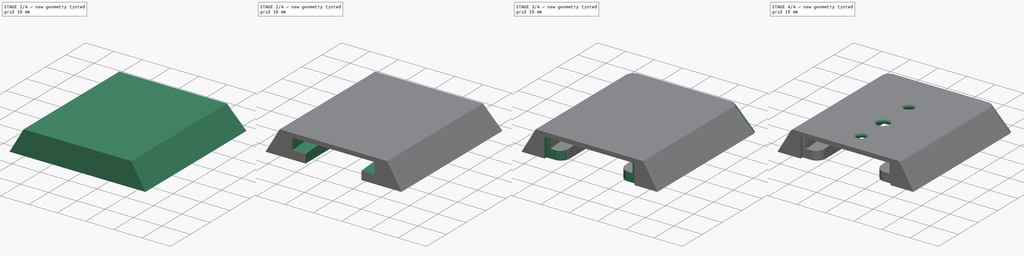
[diagram: build sequence overview — one tinted view per stage of 4, left to right]
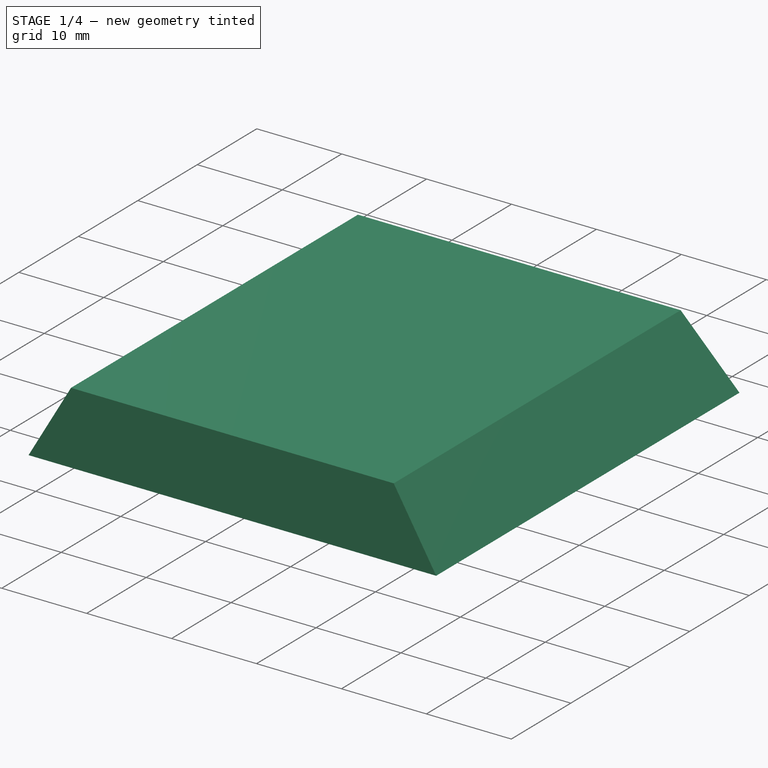
[diagram: stage 1 of 4 — iso view after this stage's code; geometry added in this stage tinted green]
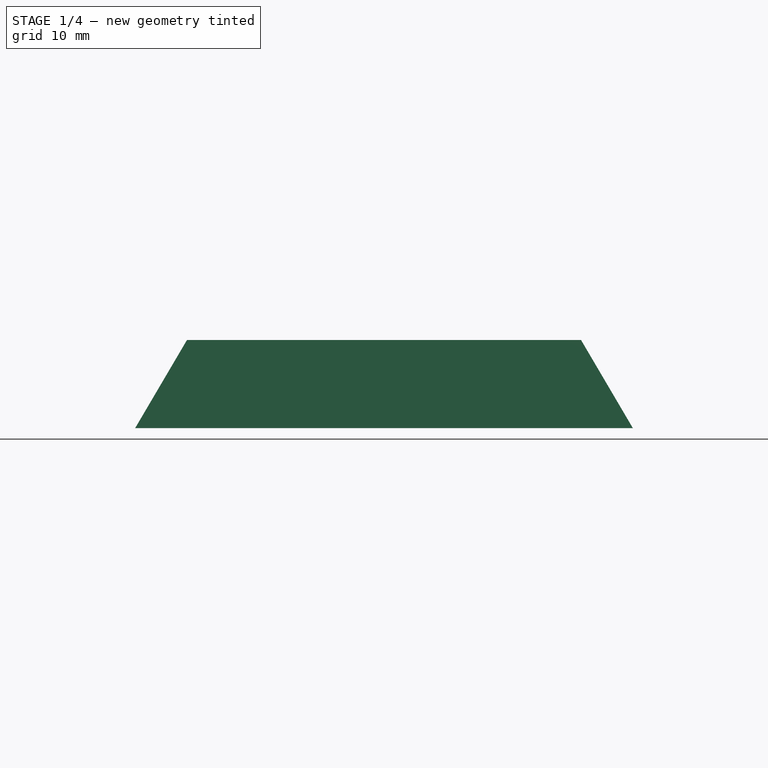
[diagram: stage 1 of 4 — front view after this stage's code; geometry added in this stage tinted green]
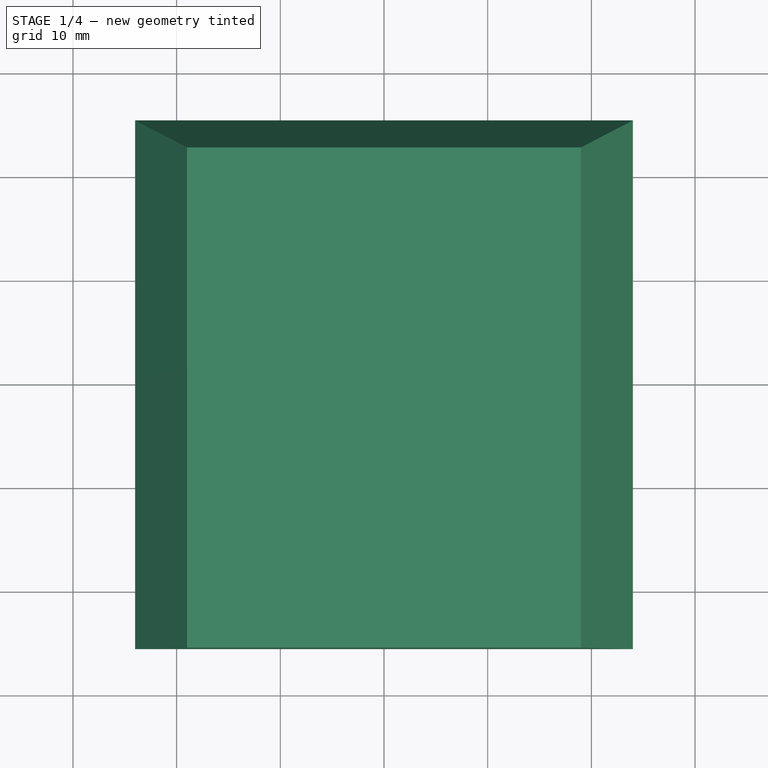
[diagram: stage 1 of 4 — top view after this stage's code; geometry added in this stage tinted green]
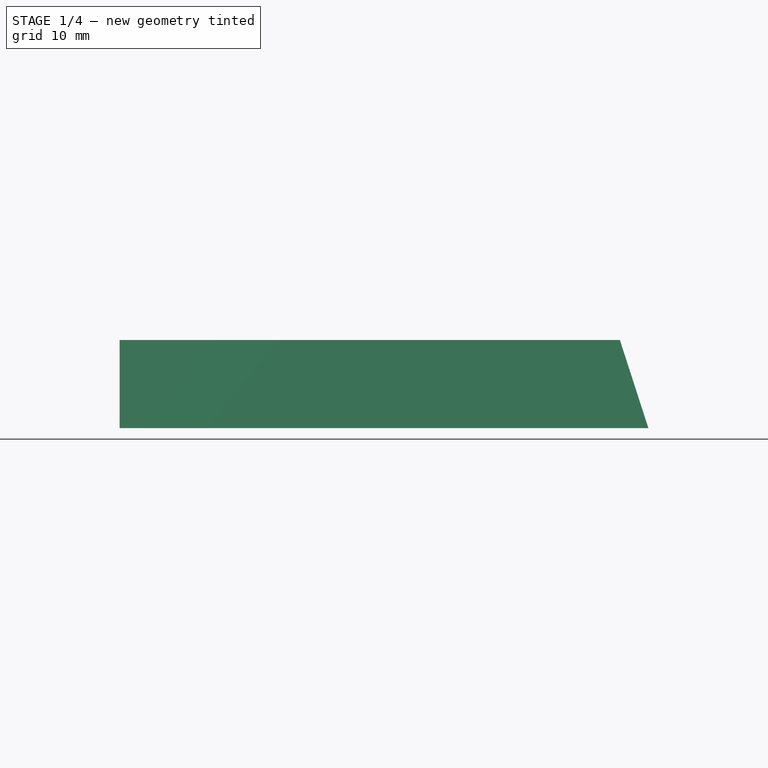
[diagram: stage 1 of 4 — right view after this stage's code; geometry added in this stage tinted green]
FCSTD DOCUMENT  (FreeCAD 0.19R24291 (Git))
Label: Hangerv2
License: All rights reserved
LicenseURL: http://en.wikipedia.org/wiki/All_rights_reserved
objects: Sketcher::SketchObject×8, PartDesign::Pocket×7, PartDesign::Fillet×2, PartDesign::Pad×1, PartDesign::Chamfer×1, PartDesign::Body×1
note: 31 computed .brp shape members not serialized (recipe doc carries the construction recipe); baked Part::Feature solids carry a one-line shape summary decoded from their .brp

FEATURE [Sketcher::SketchObject] Sketch
  FullyConstrained = false
  MapMode = 5
  Support = -> [XY_Plane]
  sketch-geometry (4):
    g0: LineSegment StartX=-24 StartY=25.5 StartZ=0 EndX=24 EndY=25.5 EndZ=0
    g1: LineSegment StartX=24 StartY=25.5 StartZ=0 EndX=24 EndY=-25.5 EndZ=0
    g2: LineSegment StartX=24 StartY=-25.5 StartZ=0 EndX=-24 EndY=-25.5 EndZ=0
    g3: LineSegment StartX=-24 StartY=-25.5 StartZ=0 EndX=-24 EndY=25.5 EndZ=0
  constraints (10):
    c: Coincident(g0,g1)
    c: Coincident(g1,g2)
    c: Coincident(g2,g3)
    c: Coincident(g3,g0)
    c: Horizontal(g2)
    c: Vertical(g1)
    c: DistanceX(g0,g0) = 48
    c: DistanceY(g1,g1) = 51
    c: Symmetric(g0,g0,g-2)
    c: Symmetric(g0,g2,g-1)
FEATURE [PartDesign::Pad] Pad
  Direction = (1,1,1)
  Length = 8.5
  Length2 = 100
  Profile = -> Sketch
  Type = 0
FEATURE [Sketcher::SketchObject] Sketch001
  ExternalGeometry = -> [Pad]
  FullyConstrained = true
  MapMode = 5
  Placement = pos=(0,-25.5,0) rot=(1,0,0;1.5708rad)
  Support = -> [Pad]
  sketch-geometry (6):
    g0: LineSegment StartX=-24 StartY=8.5 StartZ=0 EndX=-24 EndY=0 EndZ=0
    g1: LineSegment StartX=-24 StartY=8.5 StartZ=0 EndX=-19 EndY=8.5 EndZ=0
    g2: LineSegment StartX=-19 StartY=8.5 StartZ=0 EndX=-24 EndY=0 EndZ=0
    g3: LineSegment StartX=24 StartY=8.5 StartZ=0 EndX=24 EndY=0 EndZ=0
    g4: LineSegment StartX=24 StartY=8.5 StartZ=0 EndX=19 EndY=8.5 EndZ=0
    g5: LineSegment StartX=19 StartY=8.5 StartZ=0 EndX=24 EndY=0 EndZ=0
  constraints (14):
    c: Coincident(g0,g-3)
    c: Coincident(g0,g-3)
    c: Coincident(g1,g0)
    c: Horizontal(g1)
    c: Coincident(g2,g1)
    c: Coincident(g2,g0)
    c: DistanceX(g1,g1) = 5
    c: Coincident(g3,g-4)
    c: Coincident(g3,g-4)
    c: Coincident(g3,g4)
    c: Horizontal(g4)
    c: Coincident(g4,g5)
    c: Coincident(g5,g3)
    c: Equal(g5,g2)
FEATURE [Sketcher::SketchObject] Sketch002
  FullyConstrained = false
  MapMode = 5
  Placement = pos=(0,0,0) rot=(1,0,0;3.14159rad)
  sketch-geometry (4):
    g0: LineSegment StartX=-9.875 StartY=25.5 StartZ=0 EndX=9.875 EndY=25.5 EndZ=0
    g1: LineSegment StartX=9.875 StartY=25.5 StartZ=0 EndX=9.875 EndY=-14.5 EndZ=0
    g2: LineSegment StartX=9.875 StartY=-14.5 StartZ=0 EndX=-9.875 EndY=-14.5 EndZ=0
    g3: LineSegment StartX=-9.875 StartY=-14.5 StartZ=0 EndX=-9.875 EndY=25.5 EndZ=0
  constraints (10):
    c: Coincident(g0,g1)
    c: Coincident(g1,g2)
    c: Coincident(g2,g3)
    c: Coincident(g3,g0)
    c: Horizontal(g0)
    c: Vertical(g1)
    c: Vertical(g3)
    c: DistanceX(g2,g2) = 19.75
    c: Symmetric(g2,g1,g-2)
    c: DistanceY(g3,g3) = 40
FEATURE [Sketcher::SketchObject] Sketch005
  FullyConstrained = false
  MapMode = 5
  Placement = pos=(0,0,0) rot=(1,0,0;3.14159rad)
  sketch-geometry (4):
    g0: LineSegment StartX=-7 StartY=-23 StartZ=0 EndX=7 EndY=-23 EndZ=0
    g1: LineSegment StartX=7 StartY=-23 StartZ=0 EndX=7 EndY=-25.5 EndZ=0
    g2: LineSegment StartX=7 StartY=-25.5 StartZ=0 EndX=-7 EndY=-25.5 EndZ=0
    g3: LineSegment StartX=-7 StartY=-25.5 StartZ=0 EndX=-7 EndY=-23 EndZ=0
  constraints (10):
    c: Coincident(g0,g1)
    c: Coincident(g1,g2)
    c: Coincident(g2,g3)
    c: Coincident(g3,g0)
    c: Horizontal(g2)
    c: Vertical(g1)
    c: Vertical(g3)
    c: Symmetric(g0,g0,g-2)
    c: DistanceX(g0,g0) = 14
    c: DistanceY(g3,g3) = 2.5
FEATURE [Sketcher::SketchObject] Sketch006
  ExternalGeometry = -> [Pad]
  FullyConstrained = true
  MapMode = 5
  Placement = pos=(24,0,0) rot=(0.57735,0.57735,0.57735;2.0944rad)
  Support = -> [Pad]
  sketch-geometry (3):
    g0: LineSegment StartX=25.5 StartY=8.5 StartZ=0 EndX=25.5 EndY=0 EndZ=0
    g1: LineSegment StartX=25.5 StartY=8.5 StartZ=0 EndX=22.75 EndY=8.5 EndZ=0
    g2: LineSegment StartX=22.75 StartY=8.5 StartZ=0 EndX=25.5 EndY=0 EndZ=0
  constraints (7):
    c: Coincident(g0,g-4)
    c: Coincident(g0,g-3)
    c: Coincident(g1,g0)
    c: PointOnObject(g1,g-4)
    c: Coincident(g2,g1)
    c: Coincident(g2,g0)
    c: DistanceX(g1,g1) = 2.75
FEATURE [PartDesign::Pocket] Pocket
  BaseFeature = -> Pad
  Length = 5
  Length2 = 100
  Profile = -> Sketch006
  Type = 1
FEATURE [PartDesign::Pocket] Pocket001
  BaseFeature = -> Pocket
  Length = 5
  Length2 = 100
  Profile = -> Sketch001
  Type = 1
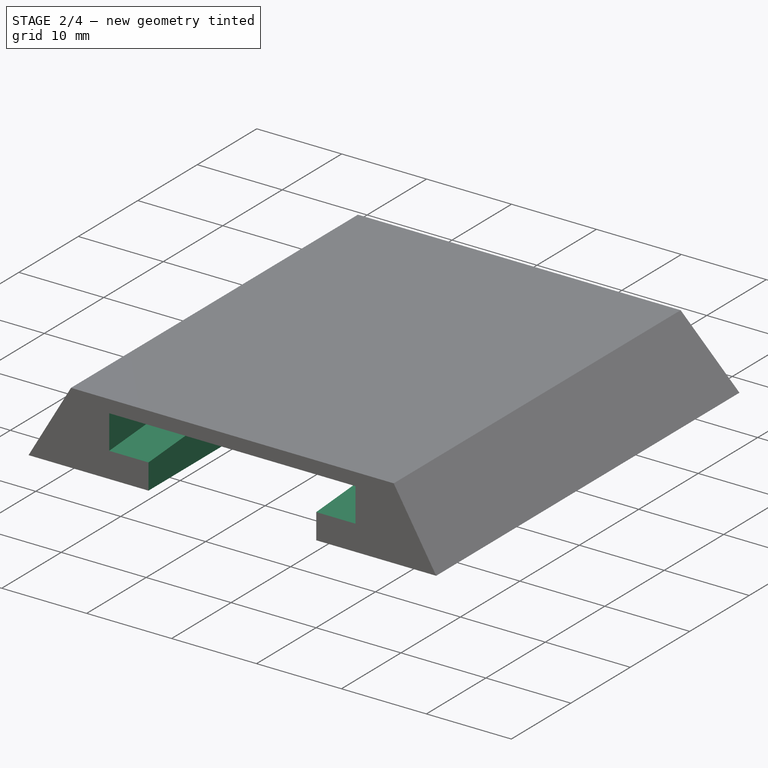
[diagram: stage 2 of 4 — iso view after this stage's code; geometry added in this stage tinted green]
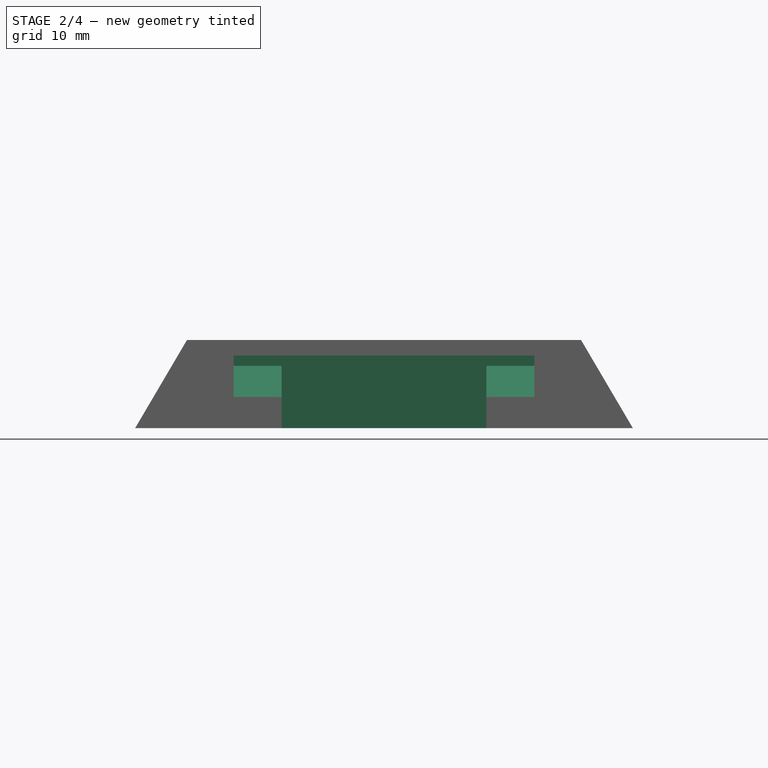
[diagram: stage 2 of 4 — front view after this stage's code; geometry added in this stage tinted green]
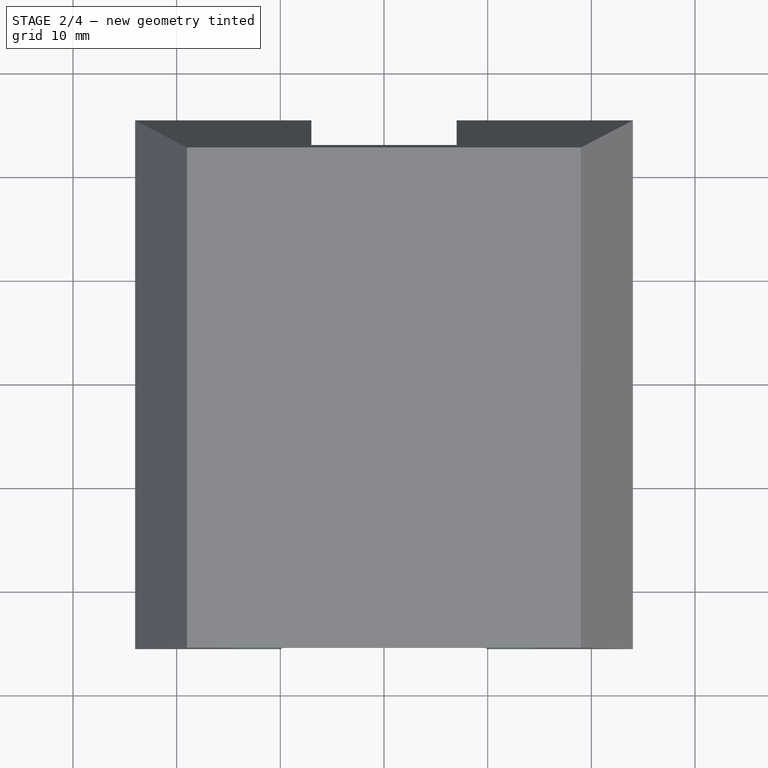
[diagram: stage 2 of 4 — top view after this stage's code; geometry added in this stage tinted green]
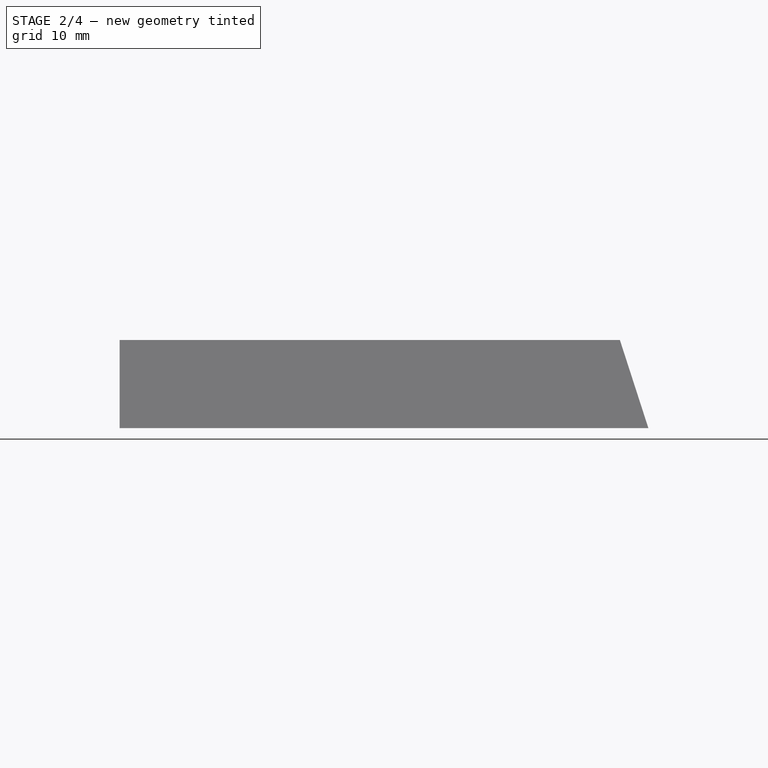
[diagram: stage 2 of 4 — right view after this stage's code; geometry added in this stage tinted green]
FEATURE [Sketcher::SketchObject] Sketch003
  ExternalGeometry = -> [Pocket001]
  FullyConstrained = true
  MapMode = 5
  Placement = pos=(0,0,0) rot=(0.57735,0.57735,0.57735;2.0944rad)
  Support = -> [YZ_Plane]
  sketch-geometry (4):
    g0: LineSegment StartX=-25.5 StartY=3 StartZ=0 EndX=-25.5 EndY=7 EndZ=0
    g1: LineSegment StartX=-25.5 StartY=7 StartZ=0 EndX=14.5 EndY=7 EndZ=0
    g2: LineSegment StartX=14.5 StartY=7 StartZ=0 EndX=14.5 EndY=6 EndZ=0
    g3: LineSegment StartX=14.5 StartY=6 StartZ=0 EndX=-25.5 EndY=3 EndZ=0
  constraints (12):
    c: Coincident(g1,g0)
    c: Coincident(g2,g1)
    c: Coincident(g3,g2)
    c: Coincident(g3,g0)
    c: Vertical(g2)
    c: DistanceY(g2,g2) = 1
    c: DistanceY(g-1,g0) = 3
    c: DistanceX(g0,g-1) = 25.5
    c: DistanceY(g0,g0) = 4
    c: DistanceX(g1,g1) = 40
    c: Vertical(g0)
    c: Horizontal(g1)
FEATURE [PartDesign::Pocket] Pocket002
  BaseFeature = -> Pocket001
  Length = 7
  Length2 = 100
  Profile = -> Sketch002
  Type = 0
FEATURE [PartDesign::Pocket] Pocket003
  BaseFeature = -> Pocket002
  Length = 29
  Length2 = 100
  Midplane = true
  Profile = -> Sketch003
  Type = 0
FEATURE [PartDesign::Pocket] Pocket005
  BaseFeature = -> Pocket003
  Length = 5
  Length2 = 100
  Profile = -> Sketch005
  Type = 1
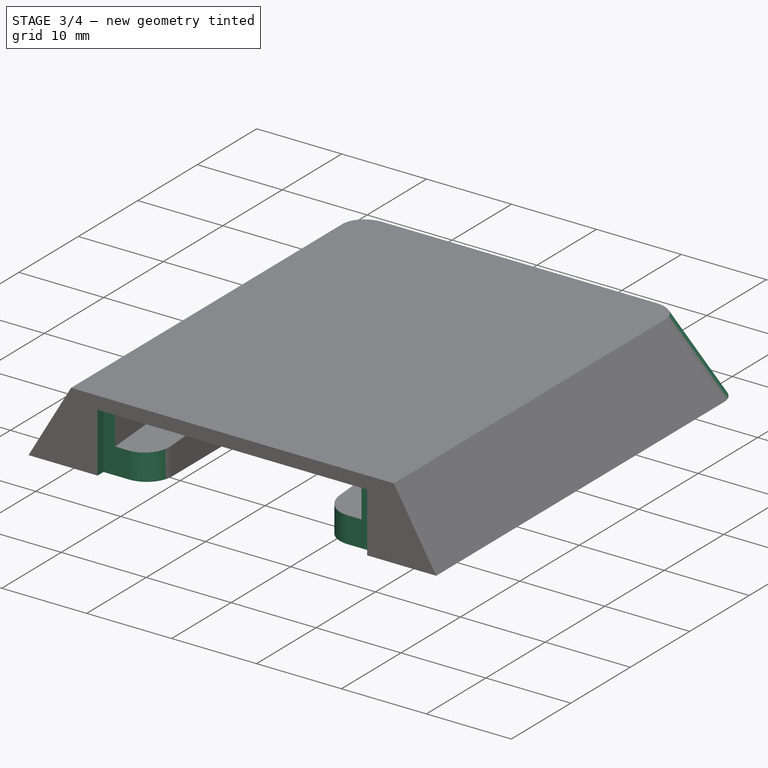
[diagram: stage 3 of 4 — iso view after this stage's code; geometry added in this stage tinted green]
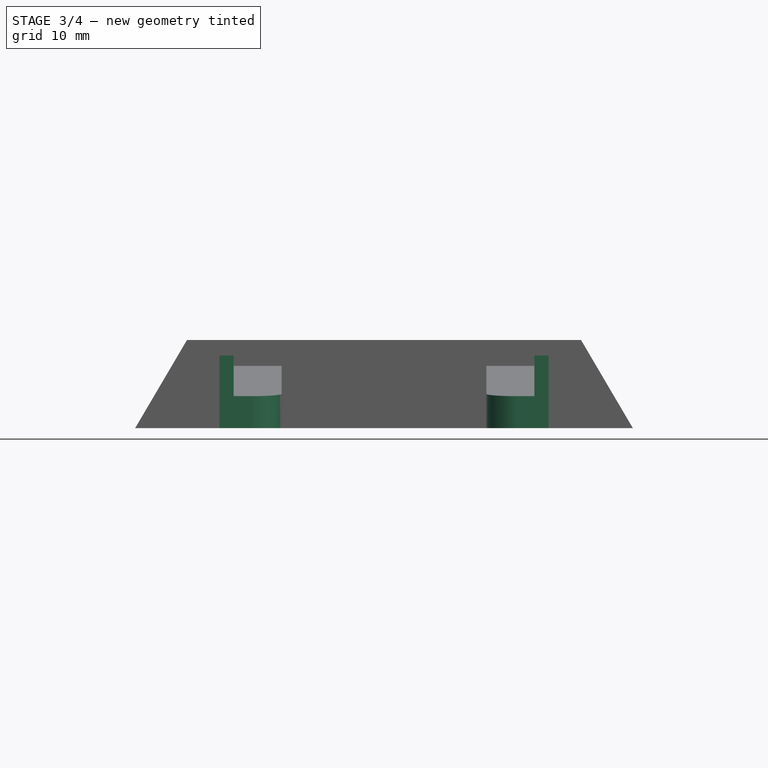
[diagram: stage 3 of 4 — front view after this stage's code; geometry added in this stage tinted green]
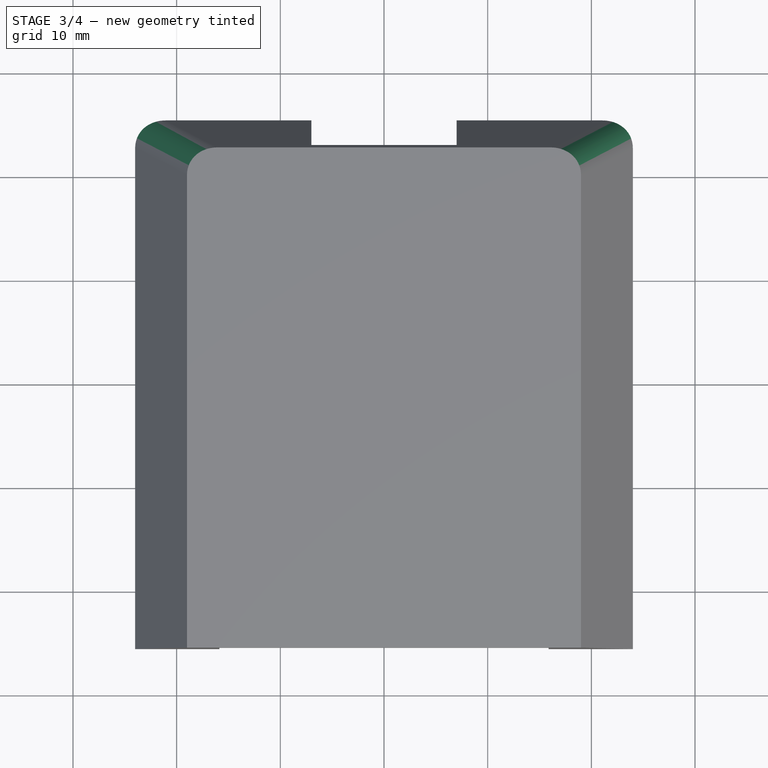
[diagram: stage 3 of 4 — top view after this stage's code; geometry added in this stage tinted green]
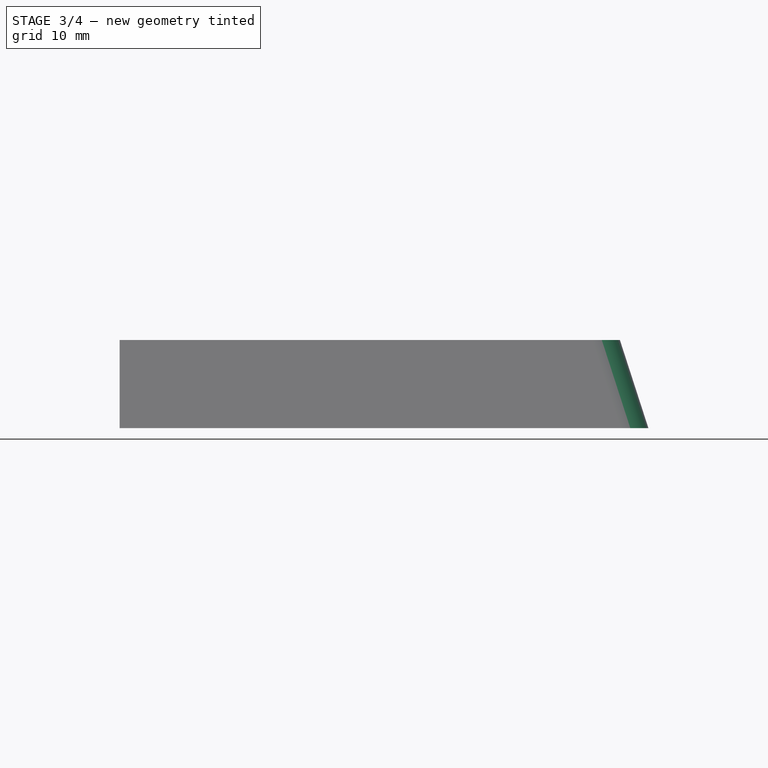
[diagram: stage 3 of 4 — right view after this stage's code; geometry added in this stage tinted green]
FEATURE [Sketcher::SketchObject] Sketch007
  ExternalGeometry = -> [Pocket005]
  FullyConstrained = true
  MapMode = 5
  Placement = pos=(0,-25.5,0) rot=(1,0,0;1.5708rad)
  Support = -> [Pocket005]
  sketch-geometry (4):
    g0: LineSegment StartX=-15.875 StartY=7 StartZ=0 EndX=15.875 EndY=7 EndZ=0
    g1: LineSegment StartX=15.875 StartY=7 StartZ=0 EndX=15.875 EndY=0 EndZ=0
    g2: LineSegment StartX=15.875 StartY=0 StartZ=0 EndX=-15.875 EndY=0 EndZ=0
    g3: LineSegment StartX=-15.875 StartY=0 StartZ=0 EndX=-15.875 EndY=7 EndZ=0
  constraints (11):
    c: Coincident(g0,g1)
    c: Coincident(g1,g2)
    c: Coincident(g2,g3)
    c: Coincident(g3,g0)
    c: Horizontal(g0)
    c: Vertical(g1)
    c: Vertical(g3)
    c: PointOnObject(g-1,g2)
    c: PointOnObject(g-3,g0)
    c: Symmetric(g2,g1,g-2)
    c: DistanceX(g0,g-3) = 6
FEATURE [PartDesign::Pocket] Pocket006
  BaseFeature = -> Pocket005
  Length = 1
  Length2 = 100
  Profile = -> Sketch007
  Type = 0
FEATURE [PartDesign::Fillet] Fillet
  Base = -> Pocket006 [Edge44,Edge46,Edge20,Edge29]
  BaseFeature = -> Pocket006
  Radius = 3
  SupportTransform = false
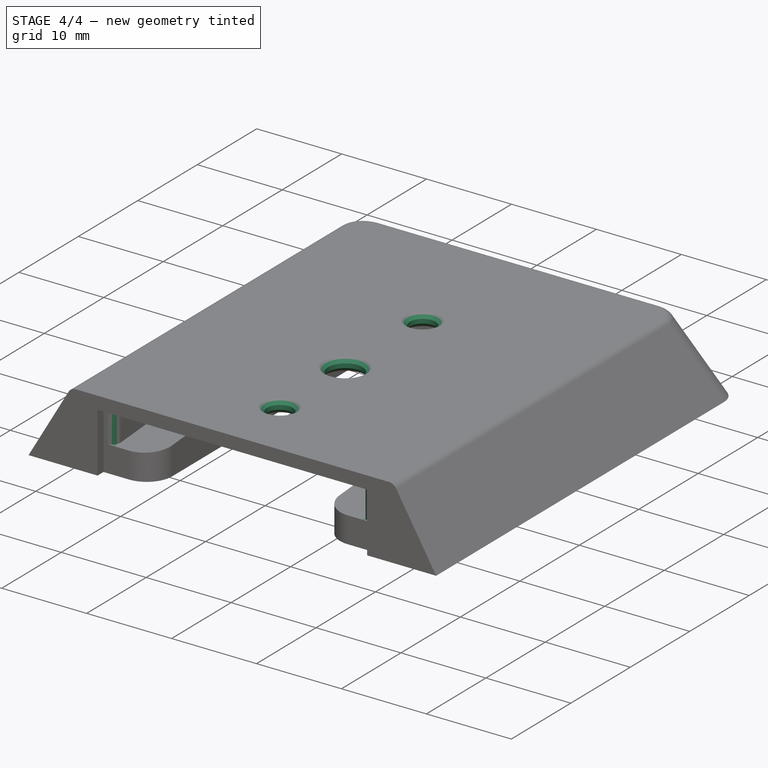
[diagram: stage 4 of 4 — iso view after this stage's code; geometry added in this stage tinted green]
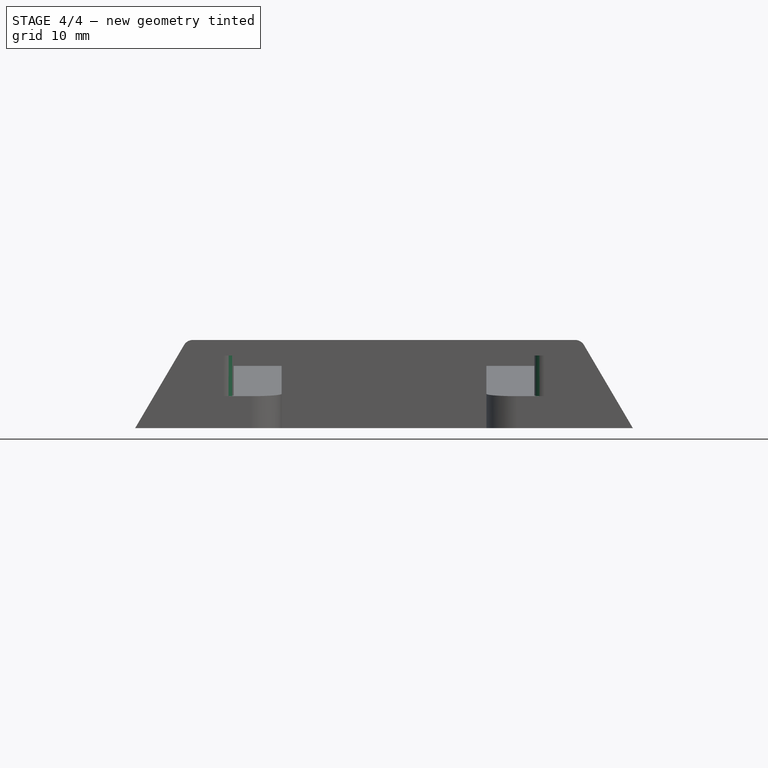
[diagram: stage 4 of 4 — front view after this stage's code; geometry added in this stage tinted green]
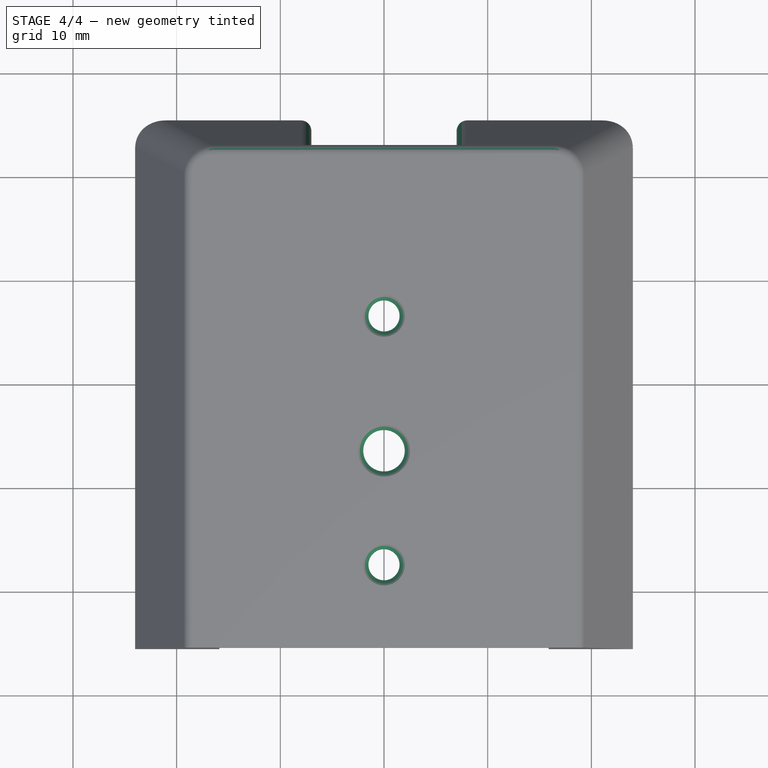
[diagram: stage 4 of 4 — top view after this stage's code; geometry added in this stage tinted green]
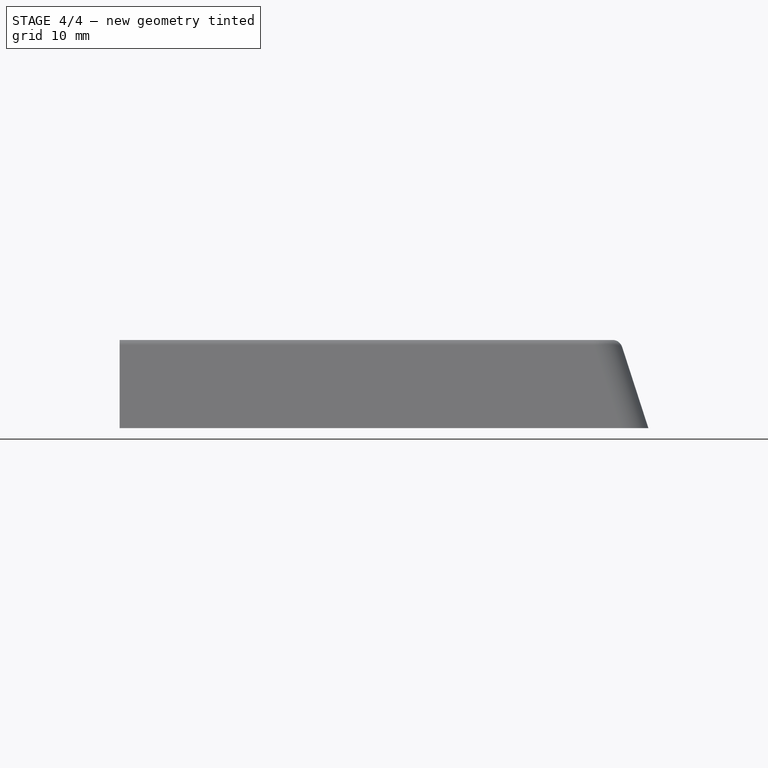
[diagram: stage 4 of 4 — right view after this stage's code; geometry added in this stage tinted green]
FEATURE [PartDesign::Fillet] Fillet001
  Base = -> Fillet [Edge64,Edge53,Edge54,Edge25,Edge59]
  BaseFeature = -> Fillet
  Radius = 1
  SupportTransform = false
FEATURE [Sketcher::SketchObject] Sketch004
  FullyConstrained = true
  MapMode = 5
  Placement = pos=(0,0,8.5) rot=(0,0,1;0rad)
  Support = -> [Fillet001]
  sketch-geometry (6):
    g0: Circle CenterX=0 CenterY=6.5 CenterZ=0 NormalX=0 NormalY=0 NormalZ=1 AngleXU=0 Radius=1.5
    g1: Circle CenterX=0 CenterY=-6.5 CenterZ=0 NormalX=0 NormalY=0 NormalZ=1 AngleXU=0 Radius=2
    g2: Circle CenterX=0 CenterY=-17.5 CenterZ=0 NormalX=0 NormalY=0 NormalZ=1 AngleXU=0 Radius=1.5
    g3: LineSegment StartX=0 StartY=6.5 StartZ=0 EndX=0 EndY=-6.5 EndZ=0
    g4: LineSegment StartX=0 StartY=-6.5 StartZ=0 EndX=0 EndY=-17.5 EndZ=0
    g5: LineSegment StartX=0 StartY=-17.5 StartZ=0 EndX=0 EndY=-25.5 EndZ=0
  constraints (16):
    c: Radius(g0) = 1.5
    c: Coincident(g3,g0)
    c: PointOnObject(g3,g-2)
    c: Coincident(g1,g3)
    c: Radius(g1) = 2
    c: Coincident(g4,g1)
    c: PointOnObject(g4,g-2)
    c: Coincident(g2,g4)
    c: Radius(g2) = 1.5
    c: DistanceY(g3,g3) = 13
    c: DistanceY(g4,g4) = 11
    c: Coincident(g5,g2)
    c: Vertical(g5)
    c: DistanceY(g5,g5) = 8
    c: PointOnObject(g0,g-2)
    c: DistanceY(g5,g-1) = 25.5
FEATURE [PartDesign::Pocket] Pocket007
  BaseFeature = -> Fillet001
  Length = 5
  Length2 = 100
  Profile = -> Sketch004
  Type = 0
FEATURE [PartDesign::Chamfer] Chamfer
  Angle = 45
  Base = -> Pocket007 [Edge87,Edge86,Edge88,Edge113,Edge115,Edge117]
  BaseFeature = -> Pocket007
  ChamferType = 0
  FlipDirection = false
  Size = 0.5
  Size2 = 1
  SupportTransform = false
FEATURE [PartDesign::Body] Body
  Group = -> [Sketch,Pad,Sketch001,Sketch002,Sketch003,Sketch004,Sketch005,Sketch006,Pocket,Pocket001,Pocket002,Pocket003,Pocket005,Sketch007,Pocket006,Fillet,Fillet001,Pocket007,Chamfer]
  Origin = -> Origin
  Tip = -> Chamfer
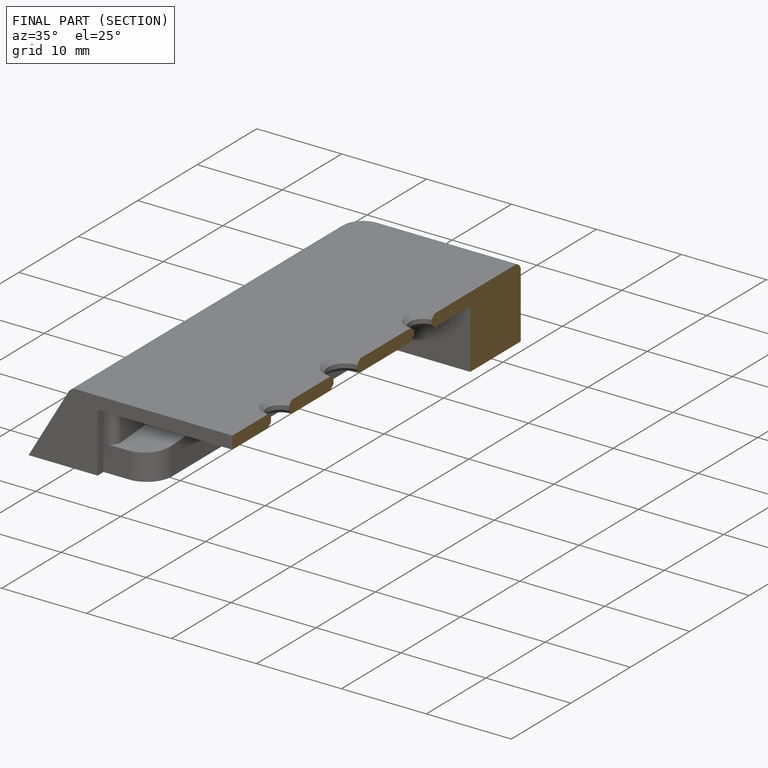
[diagram: finished part — half-section view (interior)]
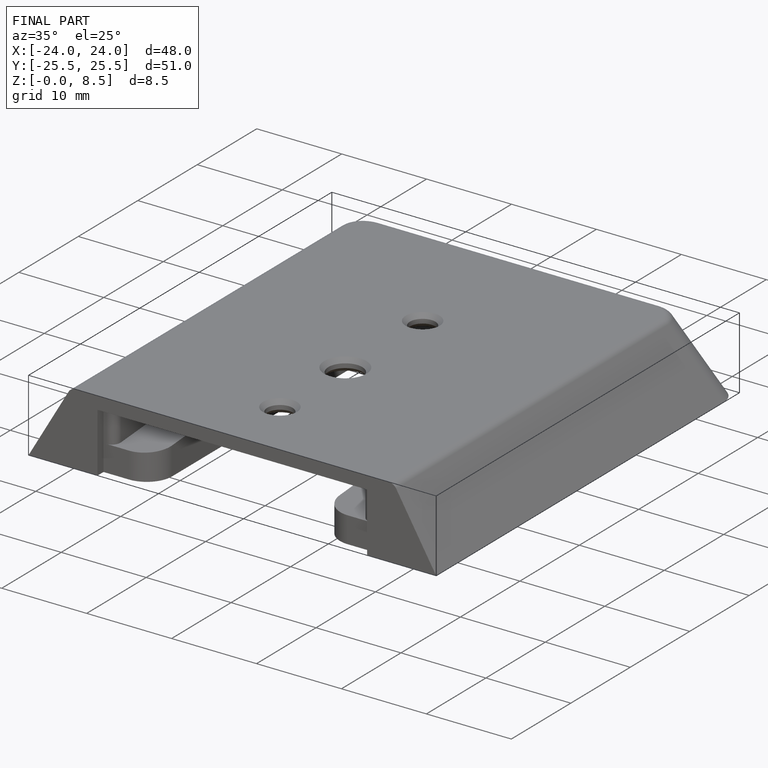
[diagram: finished part — iso view with bounding-box wireframe]
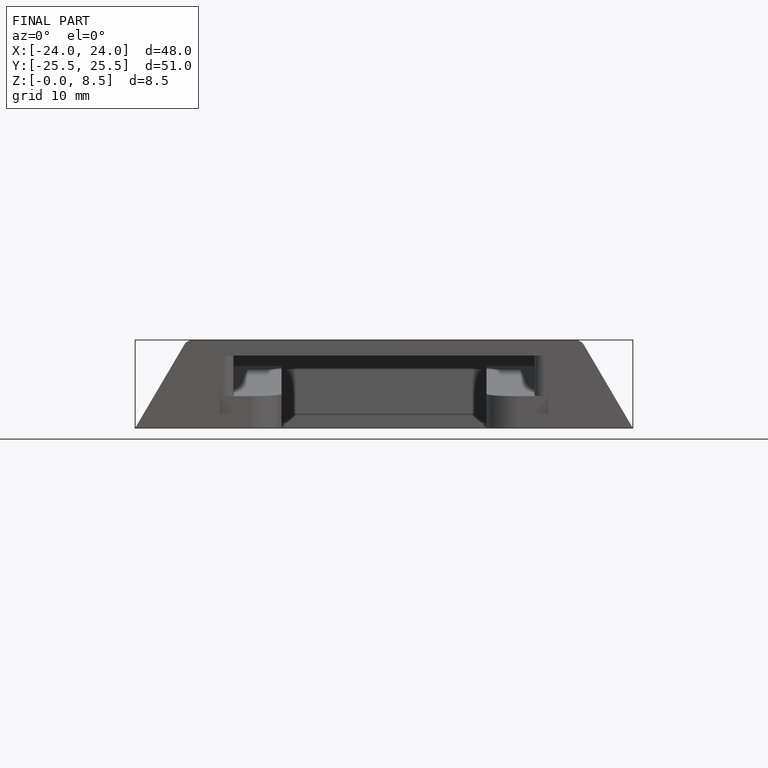
[diagram: finished part — front view with bounding-box wireframe]
